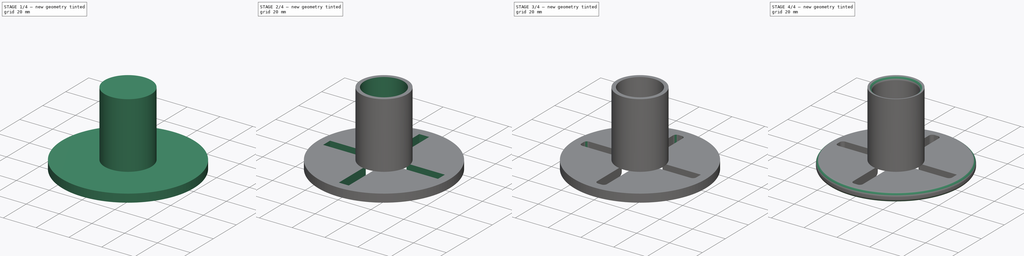
[diagram: build sequence overview — one tinted view per stage of 4, left to right]
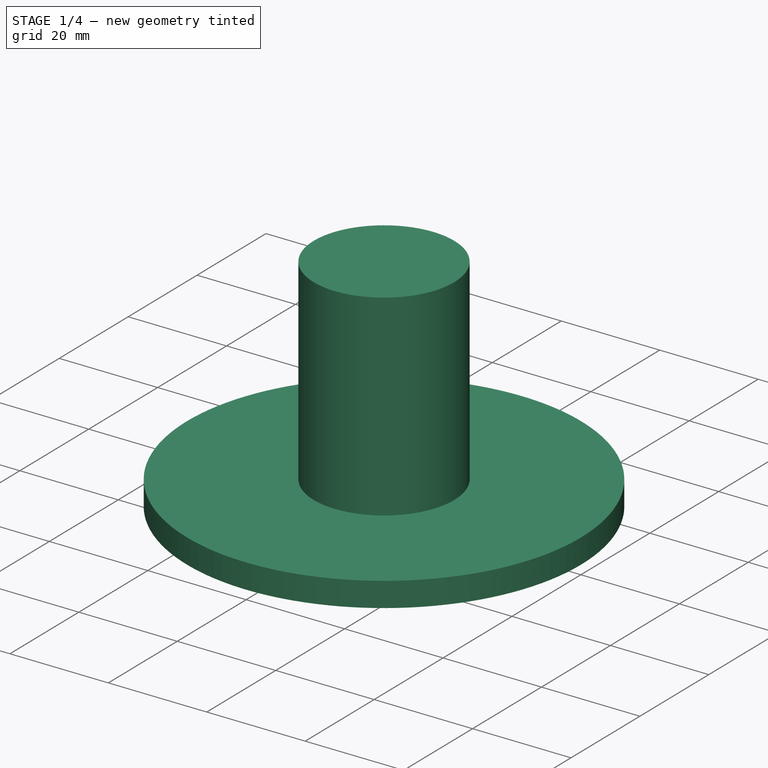
[diagram: stage 1 of 4 — iso view after this stage's code; geometry added in this stage tinted green]
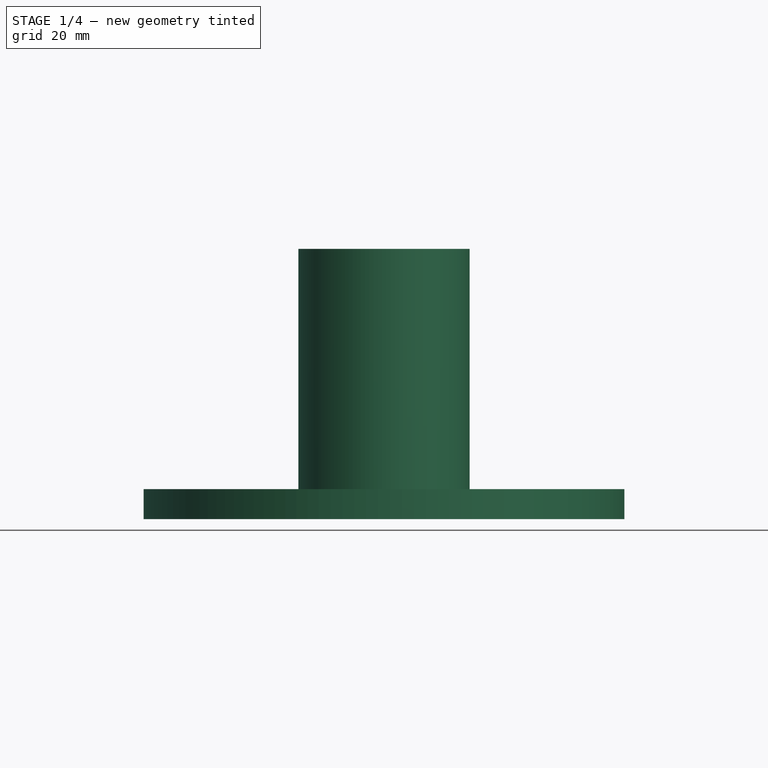
[diagram: stage 1 of 4 — front view after this stage's code; geometry added in this stage tinted green]
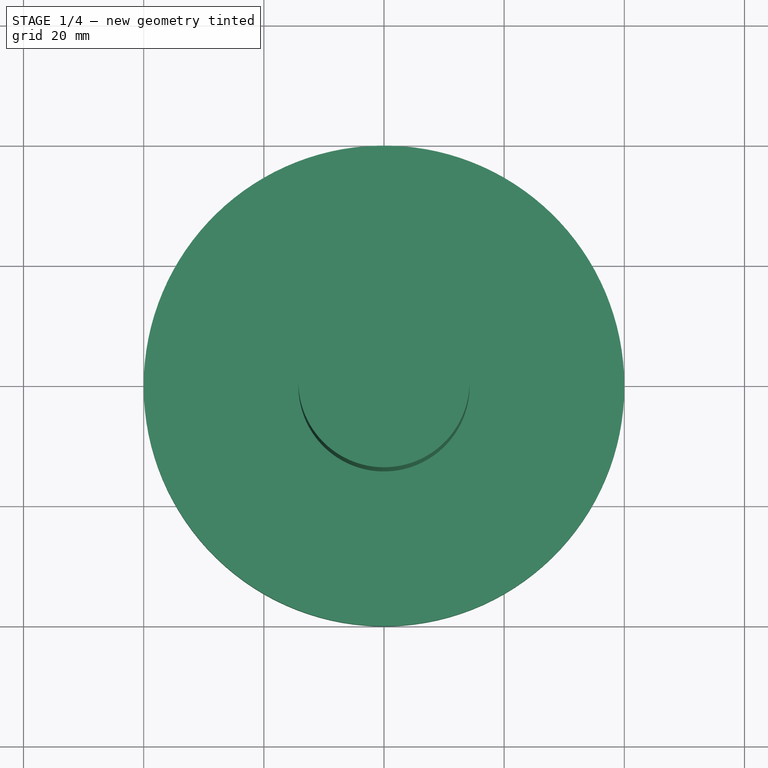
[diagram: stage 1 of 4 — top view after this stage's code; geometry added in this stage tinted green]
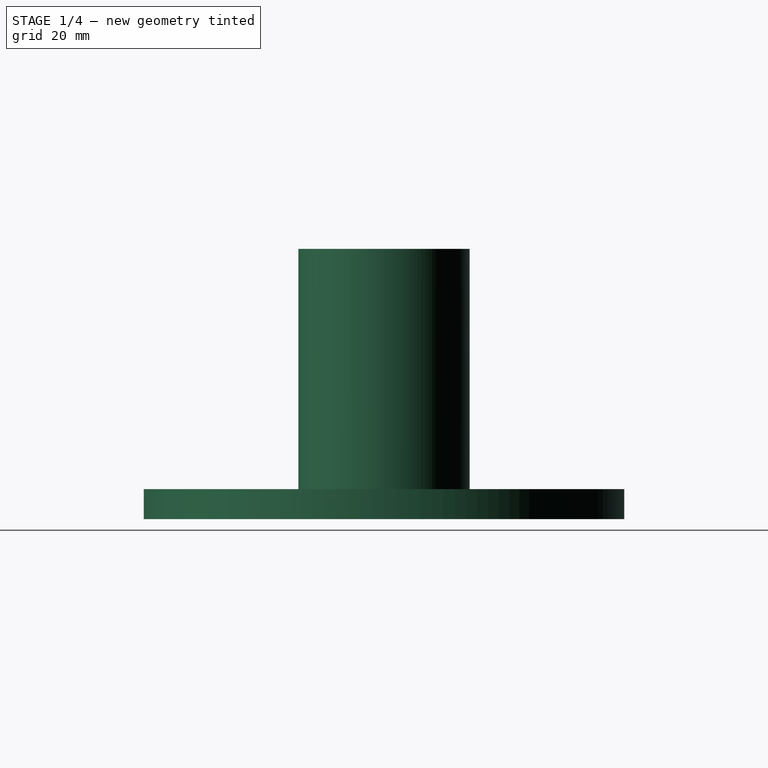
[diagram: stage 1 of 4 — right view after this stage's code; geometry added in this stage tinted green]
FCSTD DOCUMENT  (FreeCAD 0.19R)
Label: Film_Spool_1
License: All rights reserved
LicenseURL: http://en.wikipedia.org/wiki/All_rights_reserved
objects: PartDesign::Fillet×5, Sketcher::SketchObject×4, PartDesign::Pad×2, PartDesign::Pocket×2, PartDesign::Body×1
note: 23 computed .brp shape members not serialized (recipe doc carries the construction recipe); baked Part::Feature solids carry a one-line shape summary decoded from their .brp

FEATURE [Sketcher::SketchObject] Sketch
  FullyConstrained = true
  MapMode = 5
  Support = -> [XY_Plane]
  sketch-geometry (1):
    g0: Circle CenterX=0 CenterY=0 CenterZ=0 NormalX=0 NormalY=0 NormalZ=1 AngleXU=0 Radius=40
  constraints (2):
    c: Coincident(g0,g-1)
    c: Diameter(g0) = 80
FEATURE [PartDesign::Pad] Pad
  Direction = (1,1,1)
  Length = 5
  Length2 = 100
  Profile = -> Sketch
  Type = 0
FEATURE [Sketcher::SketchObject] Sketch001
  FullyConstrained = true
  MapMode = 5
  Placement = pos=(0,0,5) rot=(0,0,1;0rad)
  Support = -> [Pad]
  sketch-geometry (1):
    g0: Circle CenterX=0 CenterY=0 CenterZ=0 NormalX=0 NormalY=0 NormalZ=1 AngleXU=0 Radius=14.25
  constraints (2):
    c: Coincident(g0,g-1)
    c: Diameter(g0) = 28.5
FEATURE [PartDesign::Pad] Pad001
  BaseFeature = -> Pad
  Direction = (1,1,1)
  Length = 40
  Length2 = 100
  Profile = -> Sketch001
  Type = 0
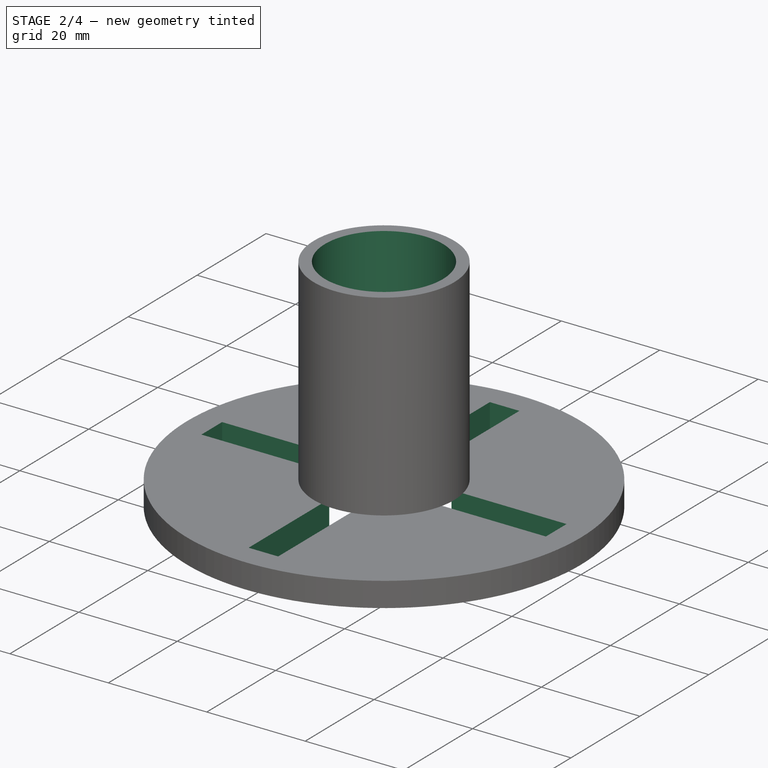
[diagram: stage 2 of 4 — iso view after this stage's code; geometry added in this stage tinted green]
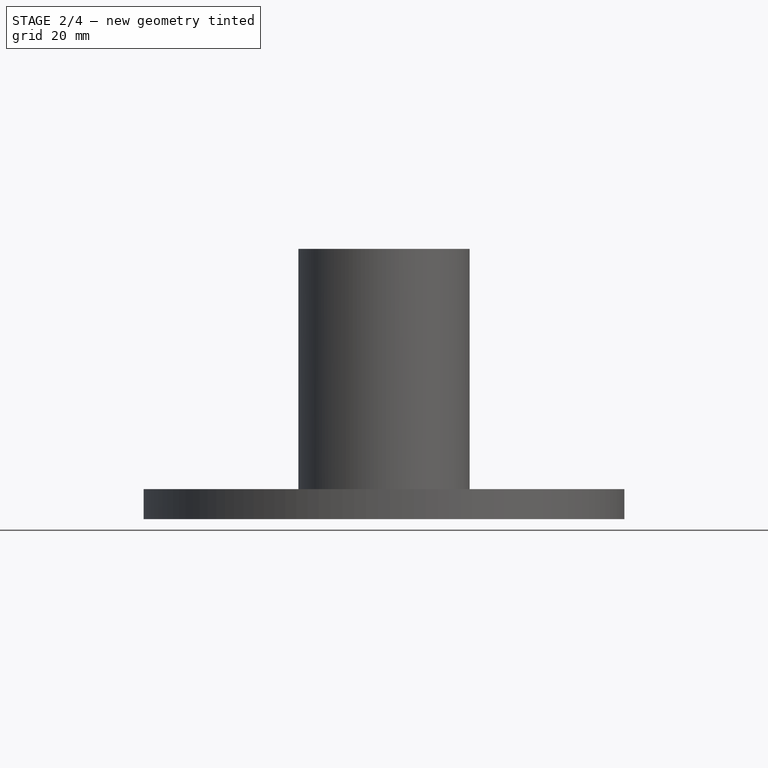
[diagram: stage 2 of 4 — front view after this stage's code; geometry added in this stage tinted green]
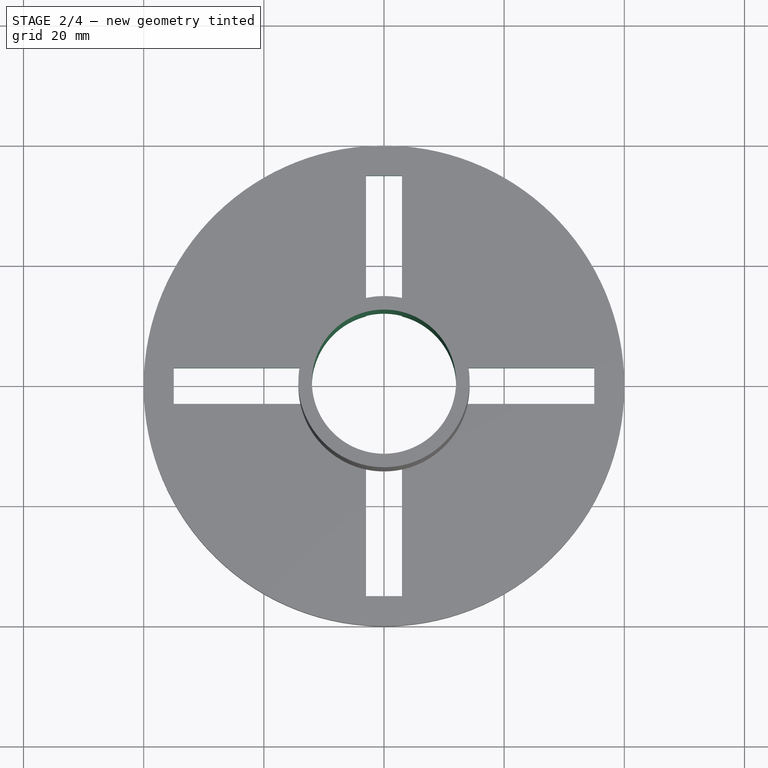
[diagram: stage 2 of 4 — top view after this stage's code; geometry added in this stage tinted green]
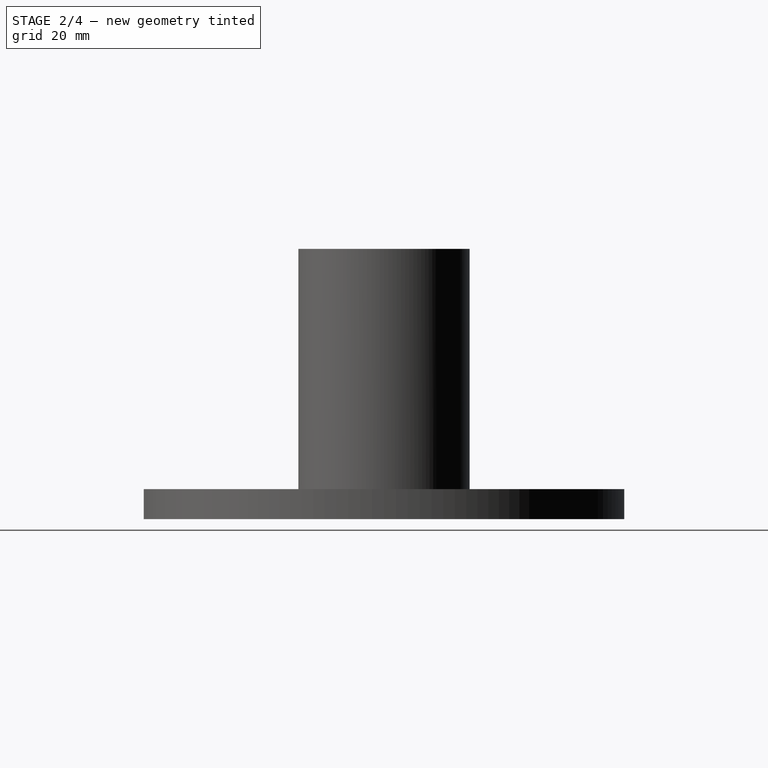
[diagram: stage 2 of 4 — right view after this stage's code; geometry added in this stage tinted green]
FEATURE [Sketcher::SketchObject] Sketch002
  FullyConstrained = true
  MapMode = 5
  Placement = pos=(0,0,45) rot=(0,0,1;0rad)
  Support = -> [Pad001]
  sketch-geometry (1):
    g0: Circle CenterX=0 CenterY=0 CenterZ=0 NormalX=0 NormalY=0 NormalZ=1 AngleXU=0 Radius=12
  constraints (2):
    c: Coincident(g0,g-1)
    c: Diameter(g0) = 24
FEATURE [PartDesign::Pocket] Pocket
  BaseFeature = -> Pad001
  Length = 5
  Length2 = 100
  Profile = -> Sketch002
  Type = 1
FEATURE [Sketcher::SketchObject] Sketch003
  FullyConstrained = true
  MapMode = 5
  Placement = pos=(0,0,0) rot=(1,0,0;3.14159rad)
  Support = -> [Pocket]
  sketch-geometry (12):
    g0: LineSegment StartX=-3 StartY=35 StartZ=0 EndX=-3 EndY=3 EndZ=0
    g1: LineSegment StartX=-3 StartY=3 StartZ=0 EndX=-35 EndY=3 EndZ=0
    g2: LineSegment StartX=-35 StartY=3 StartZ=0 EndX=-35 EndY=-3 EndZ=0
    g3: LineSegment StartX=-35 StartY=-3 StartZ=0 EndX=-3 EndY=-3 EndZ=0
    g4: LineSegment StartX=-3 StartY=-35 StartZ=0 EndX=-3 EndY=-3 EndZ=0
    g5: LineSegment StartX=-3 StartY=-35 StartZ=0 EndX=3 EndY=-35 EndZ=0
    g6: LineSegment StartX=3 StartY=-35 StartZ=0 EndX=3 EndY=-3 EndZ=0
    g7: LineSegment StartX=3 StartY=-3 StartZ=0 EndX=35 EndY=-3 EndZ=0
    g8: LineSegment StartX=35 StartY=-3 StartZ=0 EndX=35 EndY=3 EndZ=0
    g9: LineSegment StartX=35 StartY=3 StartZ=0 EndX=3 EndY=3 EndZ=0
    g10: LineSegment StartX=3 StartY=3 StartZ=0 EndX=3 EndY=35 EndZ=0
    g11: LineSegment StartX=3 StartY=35 StartZ=0 EndX=-3 EndY=35 EndZ=0
  constraints (35):
    c: Horizontal(g1)
    c: Coincident(g4,g3)
    c: Vertical(g4)
    c: Coincident(g5,g4)
    c: Coincident(g6,g5)
    c: Horizontal(g7)
    c: Horizontal(g9)
    c: Coincident(g11,g0)
    c: Horizontal(g11)
    c: Vertical(g10)
    c: Coincident(g10,g11)
    c: Vertical(g0)
    c: Coincident(g0,g1)
    c: Coincident(g2,g3)
    c: Horizontal(g3)
    c: Vertical(g2)
    c: Vertical(g8)
    c: Coincident(g8,g9)
    c: Vertical(g6)
    c: Horizontal(g5)
    c: Coincident(g6,g7)
    c: Vertical(g9,g6)
    c: Vertical(g0,g3)
    c: Horizontal(g3,g6)
    c: Horizontal(g0,g9)
    c: Equal(g1,g9)
    c: Coincident(g7,g8)
    c: Coincident(g10,g9)
    c: Equal(g10,g9)
    c: Coincident(g1,g2)
    c: Equal(g2,g11)
    c: DistanceY(g2,g2) = 6
    c: Symmetric(g0,g6,g-1)
    c: DistanceX(g1,g1) = 32
    c: Equal(g10,g6)
FEATURE [PartDesign::Pocket] Pocket001
  BaseFeature = -> Pocket
  Length = 0
  Length2 = 100
  Profile = -> Sketch003
  Type = 3
  UpToFace = -> Pocket [Face3]
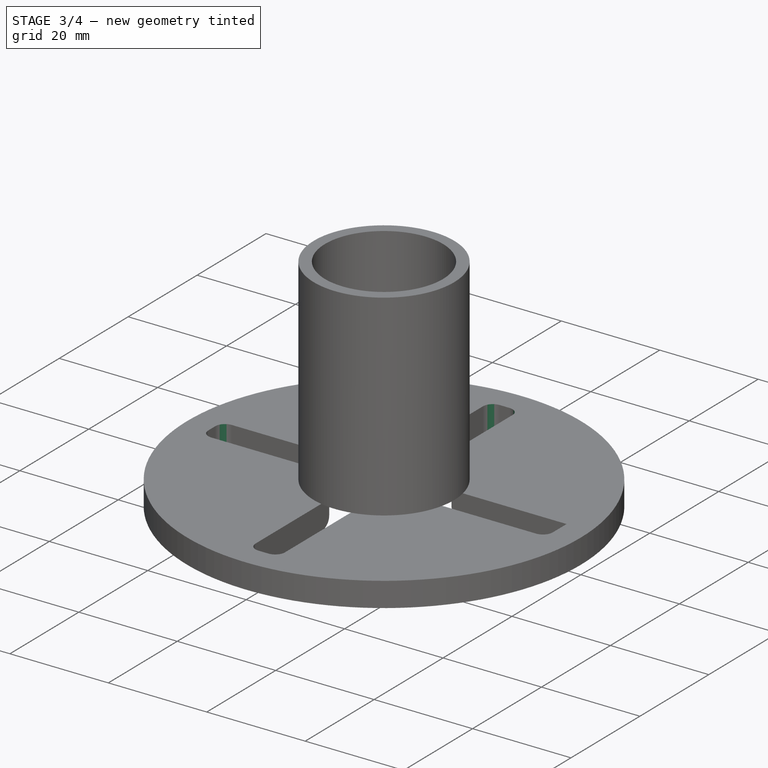
[diagram: stage 3 of 4 — iso view after this stage's code; geometry added in this stage tinted green]
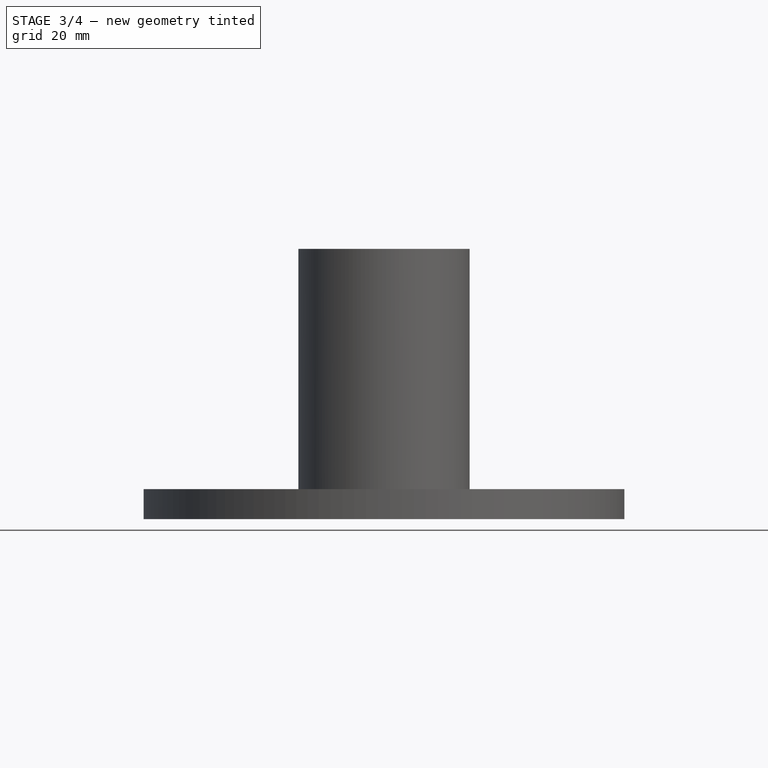
[diagram: stage 3 of 4 — front view after this stage's code; geometry added in this stage tinted green]
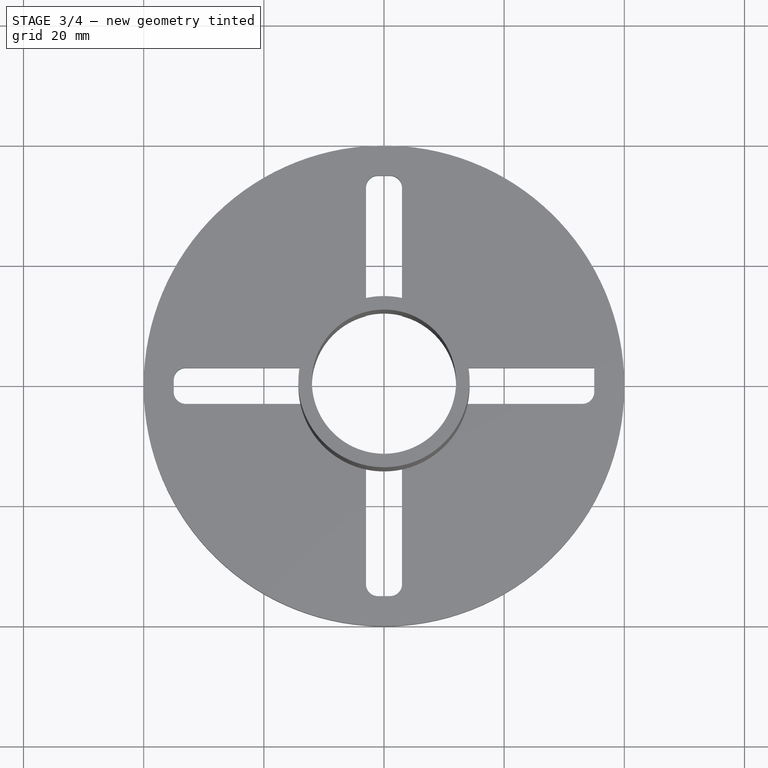
[diagram: stage 3 of 4 — top view after this stage's code; geometry added in this stage tinted green]
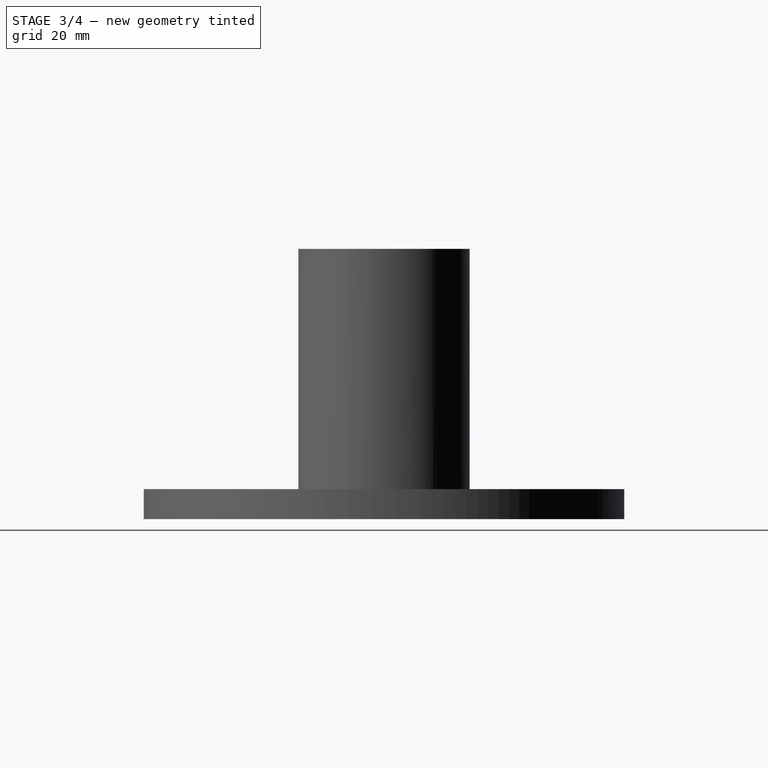
[diagram: stage 3 of 4 — right view after this stage's code; geometry added in this stage tinted green]
FEATURE [PartDesign::Fillet] Fillet
  Base = -> Pocket001 [Edge60,Edge61,Edge64,Edge57,Edge56,Edge53,Edge52]
  BaseFeature = -> Pocket001
  Radius = 2
  SupportTransform = false
FEATURE [PartDesign::Fillet] Fillet001
  Base = -> Fillet [Edge13,Edge3,Edge10,Edge22]
  BaseFeature = -> Fillet
  Radius = 2
  SupportTransform = false
FEATURE [PartDesign::Fillet] Fillet002
  Base = -> Fillet001 [Edge91,Edge89,Edge95,Edge94]
  BaseFeature = -> Fillet001
  Radius = 1
  SupportTransform = false
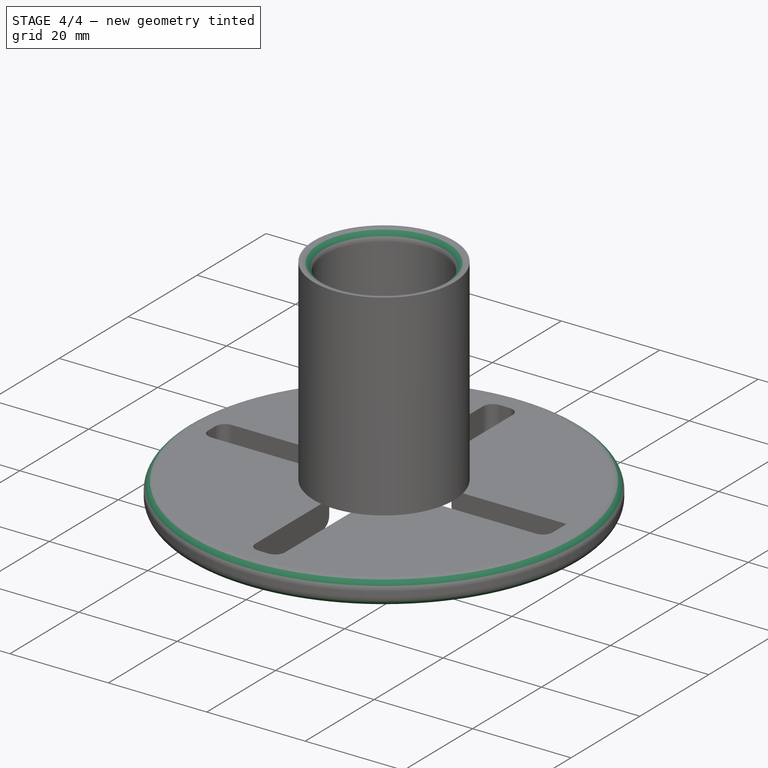
[diagram: stage 4 of 4 — iso view after this stage's code; geometry added in this stage tinted green]
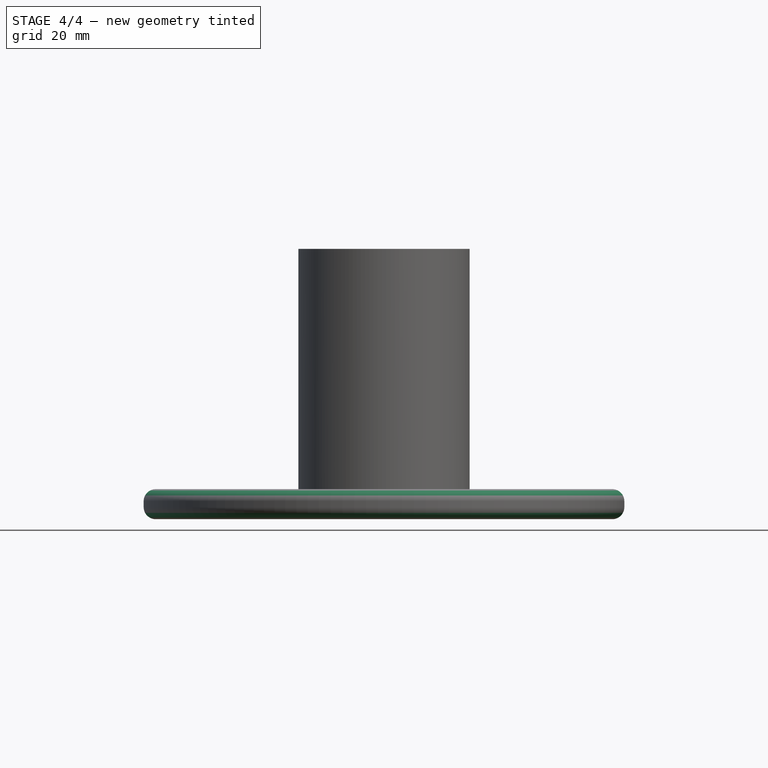
[diagram: stage 4 of 4 — front view after this stage's code; geometry added in this stage tinted green]
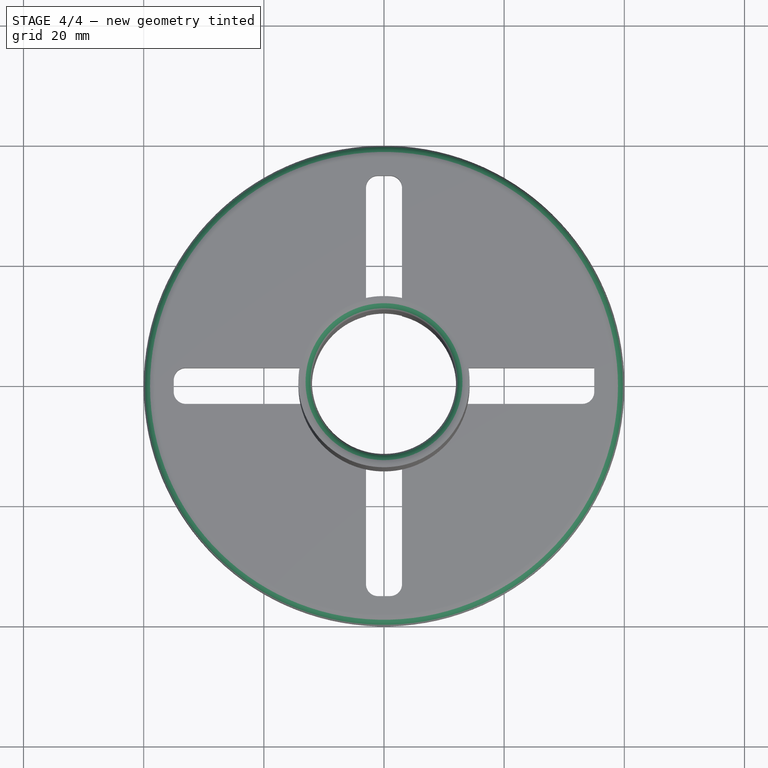
[diagram: stage 4 of 4 — top view after this stage's code; geometry added in this stage tinted green]
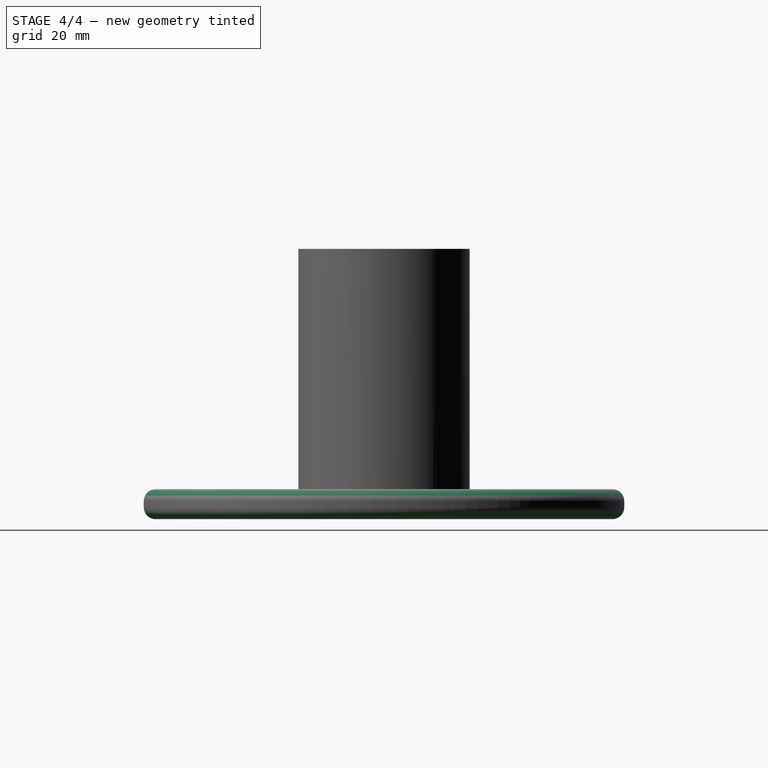
[diagram: stage 4 of 4 — right view after this stage's code; geometry added in this stage tinted green]
FEATURE [PartDesign::Fillet] Fillet003
  Base = -> Fillet002 [Edge36,Edge84]
  BaseFeature = -> Fillet002
  Radius = 2
  SupportTransform = false
FEATURE [PartDesign::Fillet] Fillet004
  Base = -> Fillet003 [Edge114]
  BaseFeature = -> Fillet003
  Radius = 2
  SupportTransform = false
FEATURE [PartDesign::Body] Body
  Group = -> [Sketch,Pad,Sketch001,Pad001,Sketch002,Pocket,Sketch003,Pocket001,Fillet,Fillet001,Fillet002,Fillet003,Fillet004]
  Origin = -> Origin
  Tip = -> Fillet004
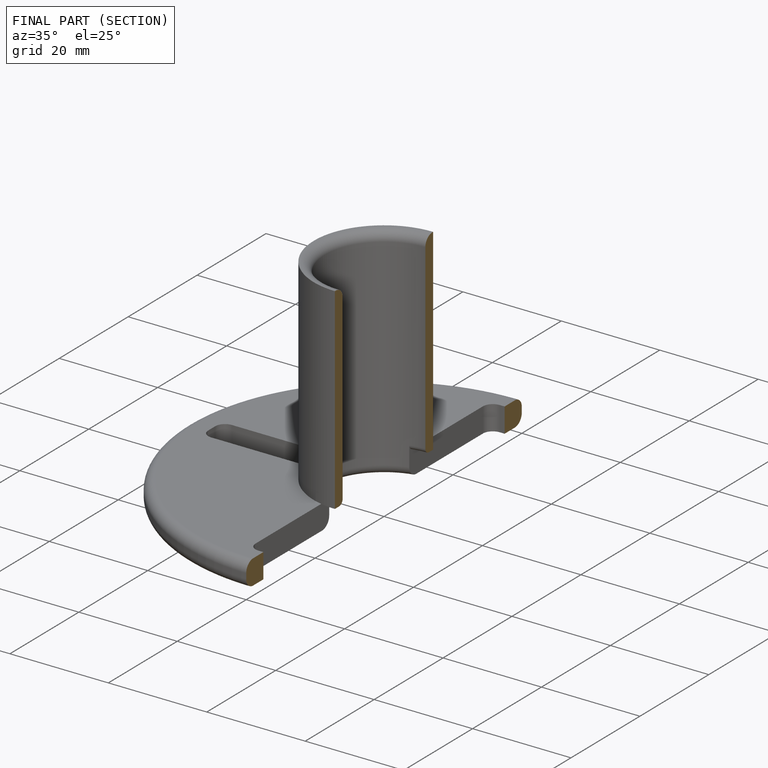
[diagram: finished part — half-section view (interior)]
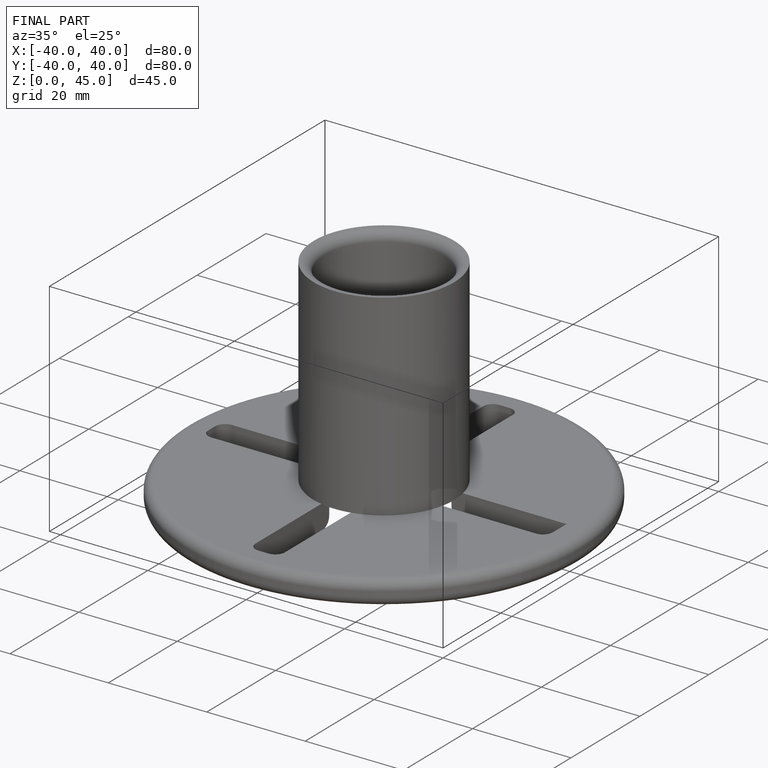
[diagram: finished part — iso view with bounding-box wireframe]
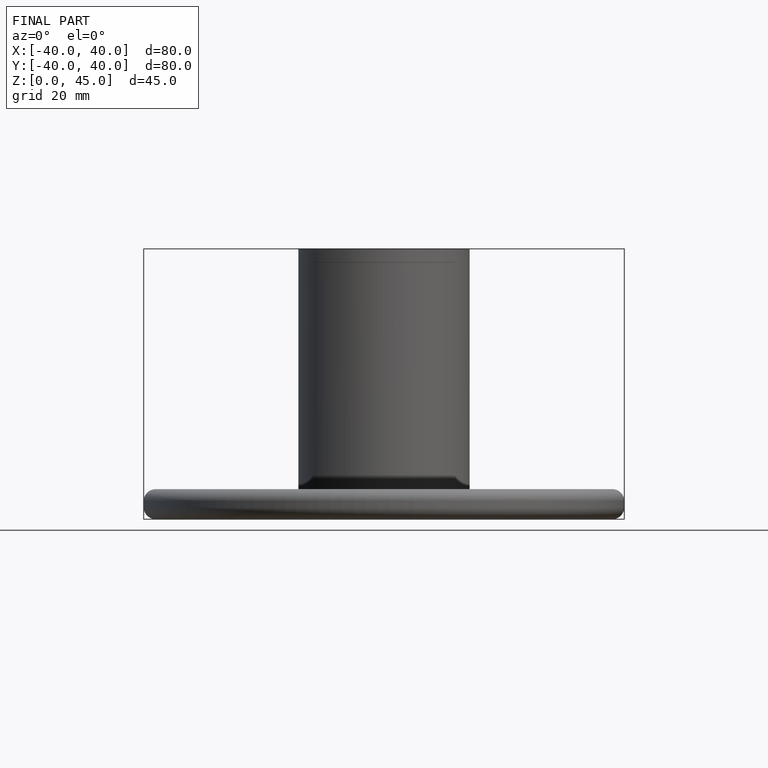
[diagram: finished part — front view with bounding-box wireframe]
